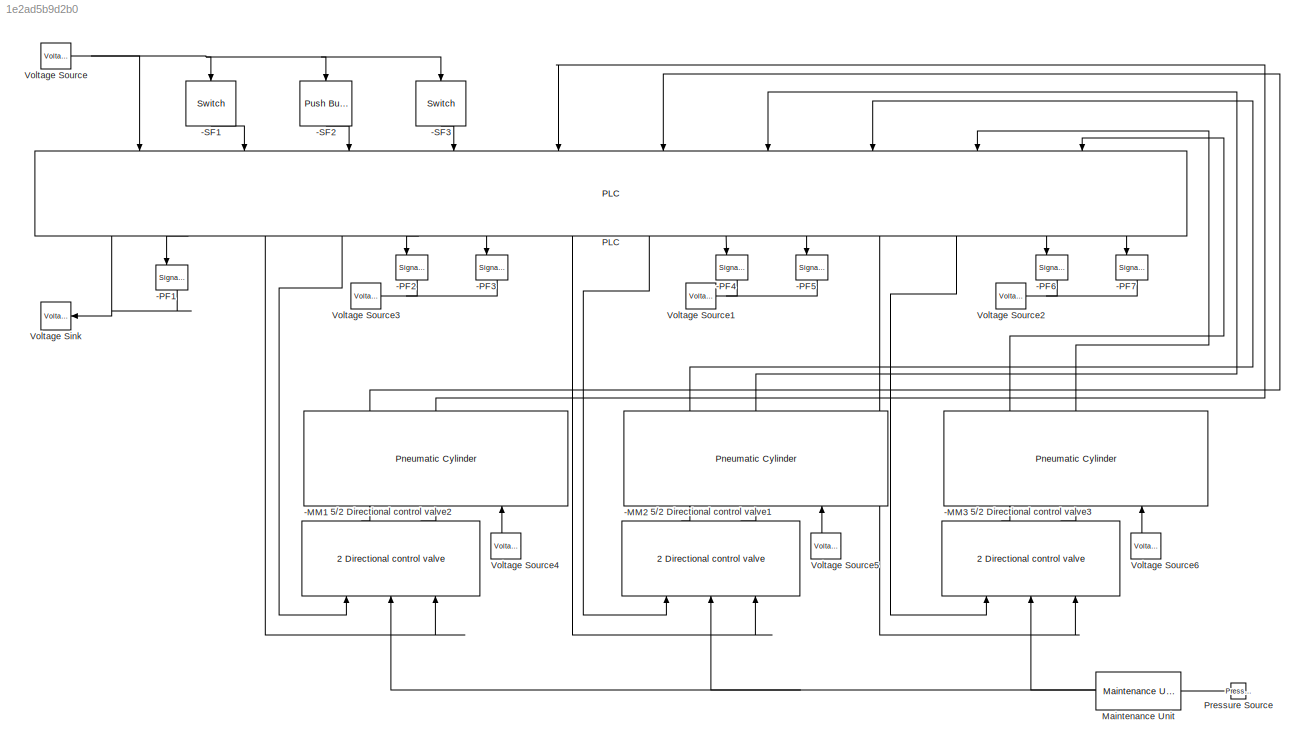
MODEL slx_1e2ad5b9d2b0
KIND model
CONFIG AbsTol = auto
CONFIG EnableMultiTasking = off
CONFIG FixedStep = auto
CONFIG MaxStep = auto
CONFIG MinStep = auto
CONFIG RelTol = 1e-3
CONFIG SampleTimeConstraint = Unconstrained
CONFIG Solver = VariableStepAuto
CONFIG SolverName = VariableStepAuto
CONFIG StartTime = 0.0
CONFIG StopTime = inf
BLOCK [Reference] -MM1  REF=library_plc2simulink/Pneumatic Cylinder  (lib defined in slx_51909f2a5fe6, slx_fcf39afcd9e3)
  NameLocation = left
  Ports = [3, 3]
  SourceBlock = library_plc2simulink/Pneumatic Cylinder
  SourceProductName = PLC2Simulink
BLOCK [Reference] -MM2  REF=library_plc2simulink/Pneumatic Cylinder  (lib defined in slx_51909f2a5fe6, slx_fcf39afcd9e3)
  NameLocation = left
  Ports = [3, 3]
  SourceBlock = library_plc2simulink/Pneumatic Cylinder
  SourceProductName = PLC2Simulink
BLOCK [Reference] -MM3  REF=library_plc2simulink/Pneumatic Cylinder  (lib defined in slx_51909f2a5fe6, slx_fcf39afcd9e3)
  NameLocation = left
  Ports = [3, 3]
  SourceBlock = library_plc2simulink/Pneumatic Cylinder
  SourceProductName = PLC2Simulink
BLOCK [Reference] -PF1  REF=library_plc2simulink/Signal Lamp  (lib defined in slx_51909f2a5fe6, slx_fcf39afcd9e3)
  NameLocation = left
  Ports = [2]
  SourceBlock = library_plc2simulink/Signal Lamp
  SourceProductName = PLC2Simulink
BLOCK [Reference] -PF2  REF=library_plc2simulink/Signal Lamp  (lib defined in slx_51909f2a5fe6, slx_fcf39afcd9e3)
  NameLocation = left
  Ports = [2]
  SourceBlock = library_plc2simulink/Signal Lamp
  SourceProductName = PLC2Simulink
BLOCK [Reference] -PF3  REF=library_plc2simulink/Signal Lamp  (lib defined in slx_51909f2a5fe6, slx_fcf39afcd9e3)
  NameLocation = left
  Ports = [2]
  SourceBlock = library_plc2simulink/Signal Lamp
  SourceProductName = PLC2Simulink
BLOCK [Reference] -PF4  REF=library_plc2simulink/Signal Lamp  (lib defined in slx_51909f2a5fe6, slx_fcf39afcd9e3)
  NameLocation = left
  Ports = [2]
  SourceBlock = library_plc2simulink/Signal Lamp
  SourceProductName = PLC2Simulink
BLOCK [Reference] -PF5  REF=library_plc2simulink/Signal Lamp  (lib defined in slx_51909f2a5fe6, slx_fcf39afcd9e3)
  NameLocation = left
  Ports = [2]
  SourceBlock = library_plc2simulink/Signal Lamp
  SourceProductName = PLC2Simulink
BLOCK [Reference] -PF6  REF=library_plc2simulink/Signal Lamp  (lib defined in slx_51909f2a5fe6, slx_fcf39afcd9e3)
  NameLocation = left
  Ports = [2]
  SourceBlock = library_plc2simulink/Signal Lamp
  SourceProductName = PLC2Simulink
BLOCK [Reference] -PF7  REF=library_plc2simulink/Signal Lamp  (lib defined in slx_51909f2a5fe6, slx_fcf39afcd9e3)
  NameLocation = left
  Ports = [2]
  SourceBlock = library_plc2simulink/Signal Lamp
  SourceProductName = PLC2Simulink
BLOCK [Reference] -SF1  REF=library_plc2simulink/Switch  (lib defined in slx_51909f2a5fe6, slx_fcf39afcd9e3)
  NameLocation = left
  Ports = [1, 1]
  SourceBlock = library_plc2simulink/Switch
  SourceProductName = PLC2Simulink
BLOCK [Reference] -SF2  REF=library_plc2simulink/Push Button  (lib defined in slx_51909f2a5fe6, slx_fcf39afcd9e3)
  NameLocation = left
  Ports = [1, 1]
  SourceBlock = library_plc2simulink/Push Button
  SourceProductName = PLC2Simulink
BLOCK [Reference] -SF3  REF=library_plc2simulink/Switch  (lib defined in slx_51909f2a5fe6, slx_fcf39afcd9e3)
  NameLocation = left
  Ports = [1, 1]
  SourceBlock = library_plc2simulink/Switch
  SourceProductName = PLC2Simulink
BLOCK [Reference] 5//2 Directional control valve1  REF=library_plc2simulink/5//2 Directional control valve  (lib defined in slx_51909f2a5fe6, slx_fcf39afcd9e3)
  NameLocation = right
  Ports = [3, 2]
  SourceBlock = library_plc2simulink/5//2 Directional control valve
  SourceProductName = PLC2Simulink
BLOCK [Reference] 5//2 Directional control valve2  REF=library_plc2simulink/5//2 Directional control valve  (lib defined in slx_51909f2a5fe6, slx_fcf39afcd9e3)
  NameLocation = right
  Ports = [3, 2]
  SourceBlock = library_plc2simulink/5//2 Directional control valve
  SourceProductName = PLC2Simulink
BLOCK [Reference] 5//2 Directional control valve3  REF=library_plc2simulink/5//2 Directional control valve  (lib defined in slx_51909f2a5fe6, slx_fcf39afcd9e3)
  NameLocation = right
  Ports = [3, 2]
  SourceBlock = library_plc2simulink/5//2 Directional control valve
  SourceProductName = PLC2Simulink
BLOCK [Reference] Maintenance Unit  REF=library_plc2simulink/Maintenance Unit  (lib defined in slx_51909f2a5fe6, slx_fcf39afcd9e3)
  Ports = [1, 1]
  SourceBlock = library_plc2simulink/Maintenance Unit
  SourceProductName = PLC2Simulink
BLOCK [Reference] PLC  REF=library_plc2simulink/PLC  (lib defined in slx_51909f2a5fe6, slx_fcf39afcd9e3)
  NameLocation = left
  Ports = [10, 14]
  SourceBlock = library_plc2simulink/PLC
  SourceProductName = PLC2Simulink
BLOCK [Reference] Pressure Source  REF=library_plc2simulink/Pressure Source  (lib defined in slx_51909f2a5fe6, slx_fcf39afcd9e3)
  NameLocation = top
  Ports = [0, 1]
  SourceBlock = library_plc2simulink/Pressure Source
  SourceProductName = PLC2Simulink
BLOCK [Reference] Voltage Sink  REF=library_plc2simulink/Voltage Sink  (lib defined in slx_51909f2a5fe6, slx_fcf39afcd9e3)
  Ports = [1]
  SourceBlock = library_plc2simulink/Voltage Sink
  SourceProductName = PLC2Simulink
BLOCK [Reference] Voltage Source  REF=library_plc2simulink/Voltage Source  (lib defined in slx_51909f2a5fe6, slx_fcf39afcd9e3)
  Ports = [0, 1]
  SourceBlock = library_plc2simulink/Voltage Source
  SourceProductName = PLC2Simulink
BLOCK [Reference] Voltage Source1  REF=library_plc2simulink/Voltage Source  (lib defined in slx_51909f2a5fe6, slx_fcf39afcd9e3)
  Ports = [0, 1]
  SourceBlock = library_plc2simulink/Voltage Source
  SourceProductName = PLC2Simulink
BLOCK [Reference] Voltage Source2  REF=library_plc2simulink/Voltage Source  (lib defined in slx_51909f2a5fe6, slx_fcf39afcd9e3)
  Ports = [0, 1]
  SourceBlock = library_plc2simulink/Voltage Source
  SourceProductName = PLC2Simulink
BLOCK [Reference] Voltage Source3  REF=library_plc2simulink/Voltage Source  (lib defined in slx_51909f2a5fe6, slx_fcf39afcd9e3)
  Ports = [0, 1]
  SourceBlock = library_plc2simulink/Voltage Source
  SourceProductName = PLC2Simulink
BLOCK [Reference] Voltage Source4  REF=library_plc2simulink/Voltage Source  (lib defined in slx_51909f2a5fe6, slx_fcf39afcd9e3)
  Ports = [0, 1]
  SourceBlock = library_plc2simulink/Voltage Source
  SourceProductName = PLC2Simulink
BLOCK [Reference] Voltage Source5  REF=library_plc2simulink/Voltage Source  (lib defined in slx_51909f2a5fe6, slx_fcf39afcd9e3)
  Ports = [0, 1]
  SourceBlock = library_plc2simulink/Voltage Source
  SourceProductName = PLC2Simulink
BLOCK [Reference] Voltage Source6  REF=library_plc2simulink/Voltage Source  (lib defined in slx_51909f2a5fe6, slx_fcf39afcd9e3)
  Ports = [0, 1]
  SourceBlock = library_plc2simulink/Voltage Source
  SourceProductName = PLC2Simulink
LINE -MM1:1 -> PLC:6
LINE -MM1:2 -> PLC:5
LINE -MM2:1 -> PLC:8
LINE -MM2:2 -> PLC:7
LINE -MM3:1 -> PLC:10
LINE -MM3:2 -> PLC:9
LINE -SF1:1 -> PLC:2
LINE -SF2:1 -> PLC:3
LINE -SF3:1 -> PLC:4
LINE 5//2 Directional control valve1:1 -> -MM2:1
LINE 5//2 Directional control valve1:2 -> -MM2:2
LINE 5//2 Directional control valve2:1 -> -MM1:1
LINE 5//2 Directional control valve2:2 -> -MM1:2
LINE 5//2 Directional control valve3:1 -> -MM3:1
LINE 5//2 Directional control valve3:2 -> -MM3:2
NET Maintenance Unit:1 -> 5//2 Directional control valve1:2, 5//2 Directional control valve2:2, 5//2 Directional control valve3:2
NET PLC:1 -> -PF1:2, Voltage Sink:1
LINE PLC:10 -> -PF5:1
LINE PLC:11 -> 5//2 Directional control valve3:3
LINE PLC:12 -> 5//2 Directional control valve3:1
LINE PLC:13 -> -PF6:1
LINE PLC:14 -> -PF7:1
LINE PLC:2 -> -PF1:1
LINE PLC:3 -> 5//2 Directional control valve2:3
LINE PLC:4 -> 5//2 Directional control valve2:1
LINE PLC:5 -> -PF2:1
LINE PLC:6 -> -PF3:1
LINE PLC:7 -> 5//2 Directional control valve1:3
LINE PLC:8 -> 5//2 Directional control valve1:1
LINE PLC:9 -> -PF4:1
LINE Pressure Source:1 -> Maintenance Unit:1
NET Voltage Source1:1 -> -PF4:2, -PF5:2
NET Voltage Source2:1 -> -PF6:2, -PF7:2
NET Voltage Source3:1 -> -PF2:2, -PF3:2
LINE Voltage Source4:1 -> -MM1:3
LINE Voltage Source5:1 -> -MM2:3
LINE Voltage Source6:1 -> -MM3:3
NET Voltage Source:1 -> -SF1:1, -SF2:1, -SF3:1, PLC:1
note: NET lines group one-source signal fan-out (src -> all destinations, sorted); 1:1 wires keep LINE
